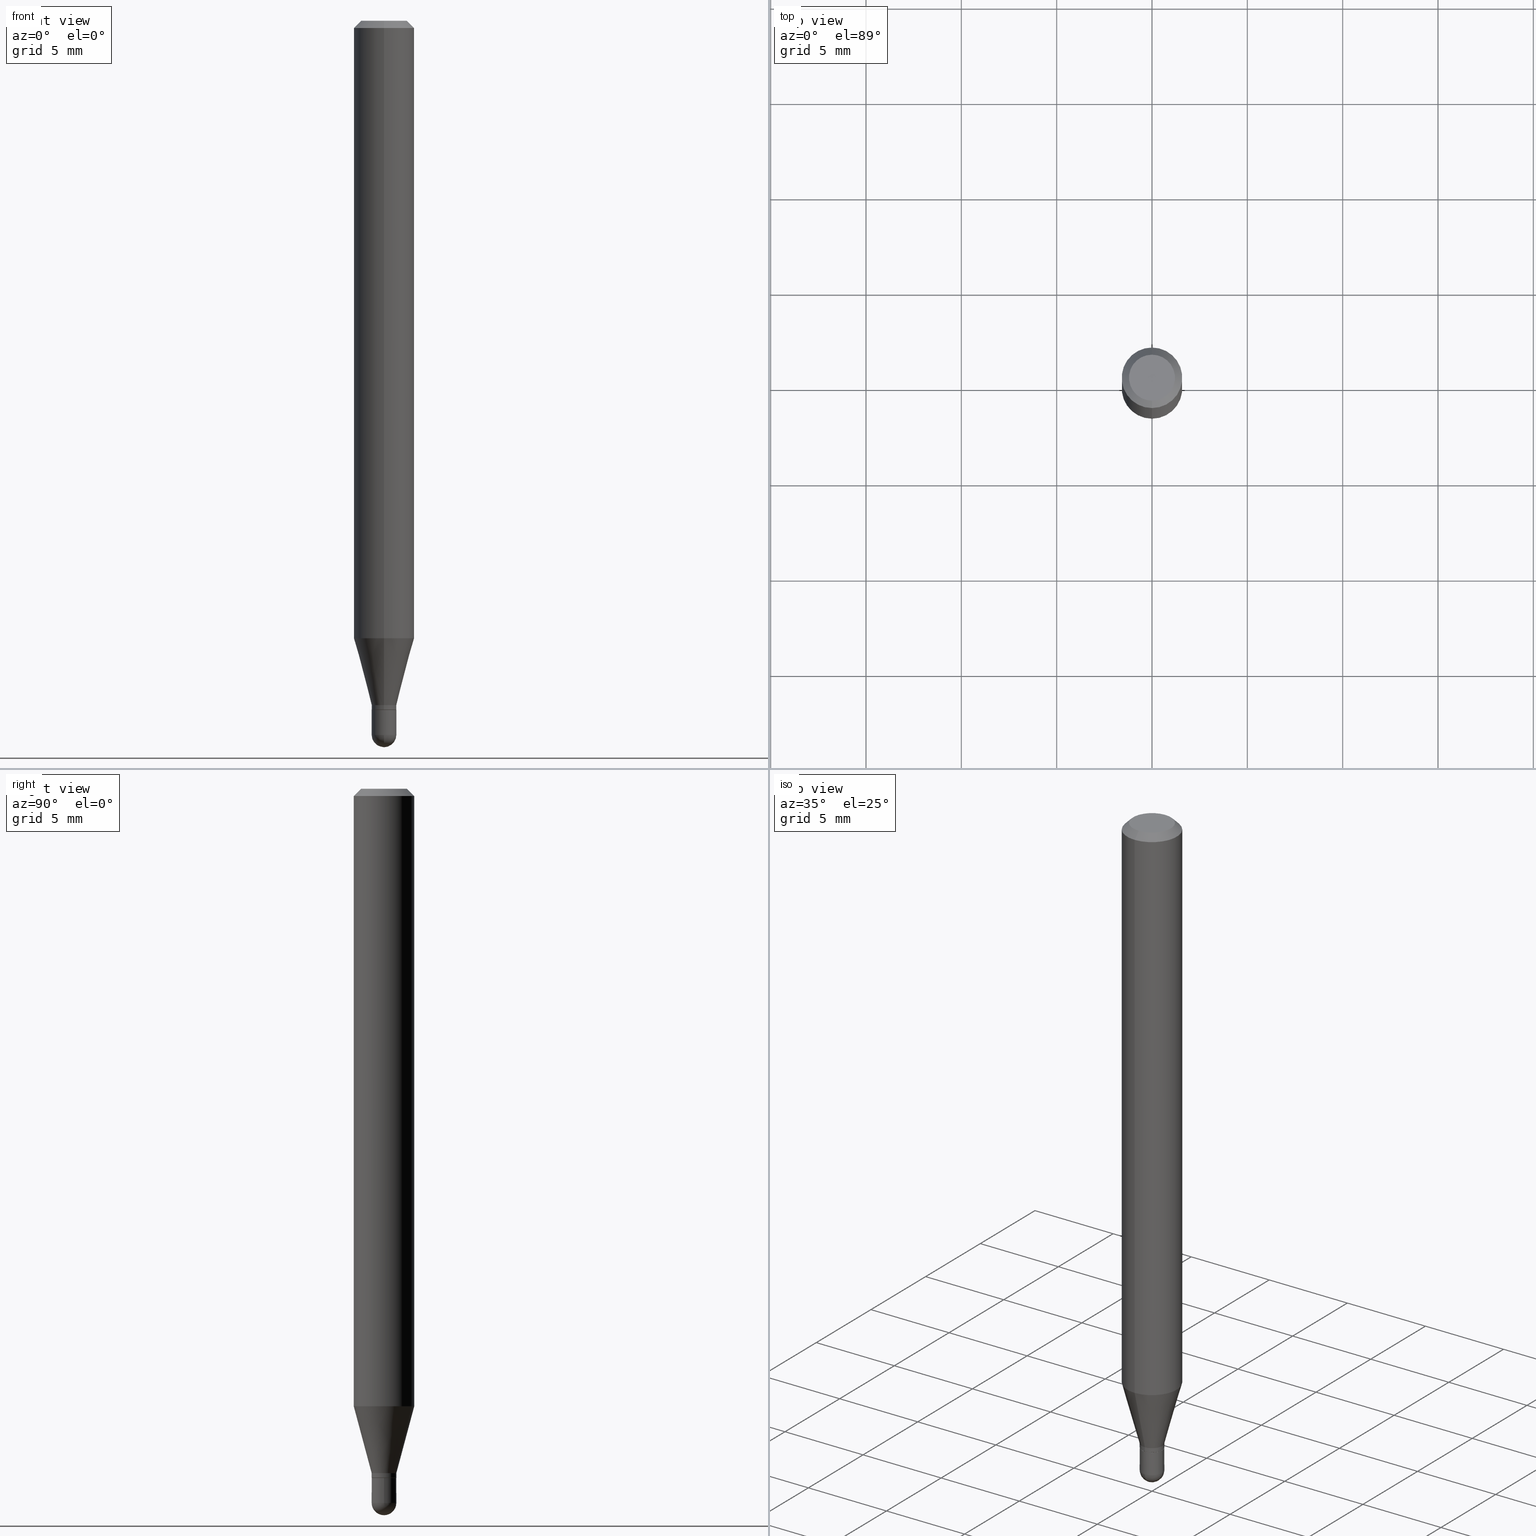
[diagram: canonical four-view strip — front | top / right | iso, engineering-drawing reading convention]
A machine part, canonical four-view strip (front | top / right | iso — engineering-drawing reading convention). The complete STEP part file that produces these views, byte-faithful:
ISO-10303-21;
HEADER;
FILE_DESCRIPTION (( 'STEP AP203' ),
    '1' );
FILE_NAME ('02548.STEP',
    '2024-03-07T20:22:07',
    ( '' ),
    ( '' ),
    'SwSTEP 2.0',
    'SolidWorks 2023',
    '' );
FILE_SCHEMA (( 'CONFIG_CONTROL_DESIGN' ));
ENDSEC;

DATA;
#1 = EDGE_CURVE ( 'NONE', #334, #324, #52, .T. ) ;
#2 = EDGE_LOOP ( 'NONE', ( #335, #466, #153, #234 ) ) ;
#3 = DIRECTION ( 'NONE',  ( -2.445468806185136597E-29, 3.491481338843145583E-15, 1.000000000000000000 ) ) ;
#4 = CARTESIAN_POINT ( 'NONE',  ( 3.478670432157215102E-29, -4.966645013739586903E-15, -1.422500000000000098 ) ) ;
#5 = EDGE_CURVE ( 'NONE', #316, #221, #206, .T. ) ;
#6 = FACE_OUTER_BOUND ( 'NONE', #74, .T. ) ;
#7 = CARTESIAN_POINT ( 'NONE',  ( 1.794120407794597717E-16, 0.02499999999999502967, -1.423000000000000043 ) ) ;
#8 = AXIS2_PLACEMENT_3D ( 'NONE', #410, #229, #253 ) ;
#9 = DIRECTION ( 'NONE',  ( 1.839019923739603865E-15, 0.2588190451025254579, 0.9659258262890669799 ) ) ;
#10 = SECURITY_CLASSIFICATION ( '', '', #257 ) ;
#11 = PRODUCT ( '02548', '02548', '', ( #139 ) ) ;
#12 = DIRECTION ( 'NONE',  ( -2.445468806185136877E-29, 3.491481338843145188E-15, 1.000000000000000000 ) ) ;
#13 = DIRECTION ( 'NONE',  ( -2.445462518212453604E-29, 3.491490343577917092E-15, 1.000000000000000000 ) ) ;
#14 = PLANE ( 'NONE',  #109 ) ;
#15 = ORIENTED_EDGE ( 'NONE', *, *, #50, .F. ) ;
#16 = DIRECTION ( 'NONE',  ( -6.982962677686266711E-15, -1.000000000000000000, 3.491490343577917487E-15 ) ) ;
#17 = DIRECTION ( 'NONE',  ( -2.445468806185136597E-29, 3.491481338843145583E-15, 1.000000000000000000 ) ) ;
#18 = AXIS2_PLACEMENT_3D ( 'NONE', #468, #458, #301 ) ;
#19 = CC_DESIGN_DATE_AND_TIME_ASSIGNMENT ( #230, #73, ( #37 ) ) ;
#20 = APPLICATION_PROTOCOL_DEFINITION ( 'international standard', 'config_control_design', 1994, #392 ) ;
#21 = CARTESIAN_POINT ( 'NONE',  ( 3.479893163416321038E-29, -4.968390758911376014E-15, -1.423000000000000043 ) ) ;
#22 = ORIENTED_EDGE ( 'NONE', *, *, #478, .F. ) ;
#23 = DIRECTION ( 'NONE',  ( 0.000000000000000000, 0.000000000000000000, 1.000000000000000000 ) ) ;
#24 = EDGE_CURVE ( 'NONE', #495, #344, #295, .T. ) ;
#25 = CARTESIAN_POINT ( 'NONE',  ( 1.811883976188591117E-16, 0.02549999999999486705, -1.422500000000000098 ) ) ;
#26 = EDGE_CURVE ( 'NONE', #248, #350, #213, .T. ) ;
#27 = ORIENTED_EDGE ( 'NONE', *, *, #5, .F. ) ;
#28 = AXIS2_PLACEMENT_3D ( 'NONE', #385, #319, #425 ) ;
#29 = VECTOR ( 'NONE', #56, 39.37007874015748143 ) ;
#30 = APPROVAL_ROLE ( '' ) ;
#31 = CARTESIAN_POINT ( 'NONE',  ( 1.811883976188621192E-16, 0.02549999999999492950, -1.474500000000000144 ) ) ;
#32 = COORDINATED_UNIVERSAL_TIME_OFFSET ( 5, 0, .BEHIND. ) ;
#33 = ORIENTED_EDGE ( 'NONE', *, *, #323, .T. ) ;
#34 = VERTEX_POINT ( 'NONE', #7 ) ;
#35 = DATE_AND_TIME ( #375, #228 ) ;
#36 = ORIENTED_EDGE ( 'NONE', *, *, #114, .F. ) ;
#37 = PRODUCT_DEFINITION ( 'UNKNOWN', '', #200, #278 ) ;
#38 = CARTESIAN_POINT ( 'NONE',  ( 3.479902111201449341E-29, -4.968377945173796372E-15, -1.423000000000000043 ) ) ;
#39 = DIRECTION ( 'NONE',  ( -2.445468806185136597E-29, 3.491481338843145583E-15, 1.000000000000000000 ) ) ;
#40 = VERTEX_POINT ( 'NONE', #435 ) ;
#41 = CARTESIAN_POINT ( 'NONE',  ( 0.000000000000000000, 0.000000000000000000, 0.000000000000000000 ) ) ;
#42 = ORIENTED_EDGE ( 'NONE', *, *, #472, .F. ) ;
#43 = EDGE_CURVE ( 'NONE', #40, #470, #343, .T. ) ;
#44 = DIRECTION ( 'NONE',  ( -2.445468806185136877E-29, 3.491481338843145188E-15, 1.000000000000000000 ) ) ;
#45 = CYLINDRICAL_SURFACE ( 'NONE', #252, 0.02549999999999992203 ) ;
#46 = LINE ( 'NONE', #239, #439 ) ;
#47 = AXIS2_PLACEMENT_3D ( 'NONE', #21, #174, #486 ) ;
#48 = CIRCLE ( 'NONE', #497, 0.02549999999999999836 ) ;
#49 = PLANE ( 'NONE',  #394 ) ;
#50 = EDGE_CURVE ( 'NONE', #313, #498, #284, .T. ) ;
#51 = ADVANCED_FACE ( 'NONE', ( #349 ), #477, .T. ) ;
#52 = CIRCLE ( 'NONE', #430, 0.02549999999999999836 ) ;
#53 = AXIS2_PLACEMENT_3D ( 'NONE', #399, #404, #363 ) ;
#54 = CC_DESIGN_APPROVAL ( #169, ( #37 ) ) ;
#55 = EDGE_CURVE ( 'NONE', #248, #152, #46, .T. ) ;
#56 = DIRECTION ( 'NONE',  ( -2.445462518212453604E-29, 3.491490343577917092E-15, 1.000000000000000000 ) ) ;
#57 = EDGE_LOOP ( 'NONE', ( #148, #98, #186, #396 ) ) ;
#58 = CARTESIAN_POINT ( 'NONE',  ( -3.773273898774340269E-16, -0.04749999999999999362, -1.623007286673070260E-16 ) ) ;
#59 = EDGE_CURVE ( 'NONE', #462, #248, #503, .T. ) ;
#60 = CARTESIAN_POINT ( 'NONE',  ( -1.780655482809647185E-16, -0.02550000000000486253, -1.413000000000000256 ) ) ;
#61 = AXIS2_PLACEMENT_3D ( 'NONE', #87, #39, #437 ) ;
#62 = AXIS2_PLACEMENT_3D ( 'NONE', #100, #95, #249 ) ;
#63 = CC_DESIGN_SECURITY_CLASSIFICATION ( #10, ( #200 ) ) ;
#64 = CALENDAR_DATE ( 2024, 7, 3 ) ;
#65 = CARTESIAN_POINT ( 'NONE',  ( 8.024700151106933838E-45, -1.145720405814209478E-30, -3.281465199872580750E-16 ) ) ;
#66 = APPLICATION_PROTOCOL_DEFINITION ( 'international standard', 'config_control_design', 1994, #236 ) ;
#67 = ORIENTED_EDGE ( 'NONE', *, *, #469, .F. ) ;
#68 = ORIENTED_EDGE ( 'NONE', *, *, #219, .F. ) ;
#69 = APPROVAL_DATE_TIME ( #339, #446 ) ;
#70 = LINE ( 'NONE', #455, #401 ) ;
#71 = AXIS2_PLACEMENT_3D ( 'NONE', #205, #366, #218 ) ;
#72 = CIRCLE ( 'NONE', #268, 0.02549999999999999836 ) ;
#73 = DATE_TIME_ROLE ( 'creation_date' ) ;
#74 = EDGE_LOOP ( 'NONE', ( #303, #376, #442, #509 ) ) ;
#75 = DATE_AND_TIME ( #347, #395 ) ;
#76 = VECTOR ( 'NONE', #198, 39.37007874015748143 ) ;
#77 = CONICAL_SURFACE ( 'NONE', #53, 0.02549999999999992550, 0.2617993877991508511 ) ;
#78 = ORIENTED_EDGE ( 'NONE', *, *, #162, .T. ) ;
#79 = CC_DESIGN_PERSON_AND_ORGANIZATION_ASSIGNMENT ( #297, #448, ( #200 ) ) ;
#80 = EDGE_LOOP ( 'NONE', ( #188, #227, #189, #211 ) ) ;
#81 = CARTESIAN_POINT ( 'NONE',  ( -0.02549999999999999836, -4.877095192030181253E-15, -1.474500000000000144 ) ) ;
#82 = CARTESIAN_POINT ( 'NONE',  ( -1.745740669421218346E-16, -0.02500000000000496617, -1.423000000000000043 ) ) ;
#83 = ORIENTED_EDGE ( 'NONE', *, *, #207, .F. ) ;
#84 = LINE ( 'NONE', #314, #267 ) ;
#85 = DIRECTION ( 'NONE',  ( -2.445462518212453604E-29, 3.491490343577917092E-15, 1.000000000000000000 ) ) ;
#86 = VECTOR ( 'NONE', #259, 39.37007874015748143 ) ;
#87 = CARTESIAN_POINT ( 'NONE',  ( 0.000000000000000000, 0.000000000000000000, 0.000000000000000000 ) ) ;
#88 = DIRECTION ( 'NONE',  ( 2.438088387897960049E-29, -3.491481338843145188E-15, -1.000000000000000000 ) ) ;
#89 = ORIENTED_EDGE ( 'NONE', *, *, #420, .F. ) ;
#90 = CIRCLE ( 'NONE', #423, 0.06250000000000000000 ) ;
#91 = DIRECTION ( 'NONE',  ( -2.445462518212453604E-29, 3.491490343577917092E-15, 1.000000000000000000 ) ) ;
#92 = CARTESIAN_POINT ( 'NONE',  ( 4.440892098500939734E-16, 0.06249999999999995143, -0.01500000000000054588 ) ) ;
#93 = CC_DESIGN_DATE_AND_TIME_ASSIGNMENT ( #35, #371, ( #10 ) ) ;
#94 = CYLINDRICAL_SURFACE ( 'NONE', #378, 0.02549999999999999836 ) ;
#95 = DIRECTION ( 'NONE',  ( -1.000000000000000000, 6.982962677686265922E-15, -4.883557194083112340E-29 ) ) ;
#96 =( LENGTH_UNIT ( ) NAMED_UNIT ( * ) SI_UNIT ( $, .METRE. ) );
#97 = LINE ( 'NONE', #60, #142 ) ;
#98 = ORIENTED_EDGE ( 'NONE', *, *, #114, .T. ) ;
#99 = AXIS2_PLACEMENT_3D ( 'NONE', #176, #290, #212 ) ;
#100 = CARTESIAN_POINT ( 'NONE',  ( 3.603663080682576322E-29, -5.151312083462043978E-15, -1.474500000000000144 ) ) ;
#101 = CIRCLE ( 'NONE', #62, 0.02550000000000016143 ) ;
#102 = APPROVAL_STATUS ( 'not_yet_approved' ) ;
#103 = DIRECTION ( 'NONE',  ( -2.445462518212453604E-29, 3.491490343577917092E-15, 1.000000000000000000 ) ) ;
#104 = FACE_OUTER_BOUND ( 'NONE', #80, .T. ) ;
#105 = DIRECTION ( 'NONE',  ( -2.445468806185136597E-29, 3.491481338843145583E-15, 1.000000000000000000 ) ) ;
#106 = DIRECTION ( 'NONE',  ( 1.000000000000000000, -6.982962677686275388E-15, 0.000000000000000000 ) ) ;
#107 = LINE ( 'NONE', #441, #86 ) ;
#108 = DIRECTION ( 'NONE',  ( -2.445462518212453604E-29, 3.491490343577917092E-15, 1.000000000000000000 ) ) ;
#109 = AXIS2_PLACEMENT_3D ( 'NONE', #285, #171, #484 ) ;
#110 = PERSON_AND_ORGANIZATION_ROLE ( 'creator' ) ;
#111 = ADVANCED_FACE ( 'NONE', ( #353 ), #149, .T. ) ;
#112 = ORIENTED_EDGE ( 'NONE', *, *, #138, .T. ) ;
#113 = ORIENTED_EDGE ( 'NONE', *, *, #398, .F. ) ;
#114 = EDGE_CURVE ( 'NONE', #495, #313, #291, .T. ) ;
#115 = FACE_OUTER_BOUND ( 'NONE', #57, .T. ) ;
#116 = ORIENTED_EDGE ( 'NONE', *, *, #507, .T. ) ;
#117 = CARTESIAN_POINT ( 'NONE',  ( 0.02549999999999999836, -1.780655482809997982E-16, 1.243425077827963501E-30 ) ) ;
#118 = DIRECTION ( 'NONE',  ( 2.445462518212453604E-29, -3.491490343577917092E-15, -1.000000000000000000 ) ) ;
#119 = AXIS2_PLACEMENT_3D ( 'NONE', #243, #318, #165 ) ;
#120 = APPROVAL_PERSON_ORGANIZATION ( #187, #374, #30 ) ;
#121 = SPHERICAL_SURFACE ( 'NONE', #71, 0.02550000000000016143 ) ;
#122 = ORIENTED_EDGE ( 'NONE', *, *, #1, .T. ) ;
#123 = ORIENTED_EDGE ( 'NONE', *, *, #59, .T. ) ;
#124 = CARTESIAN_POINT ( 'NONE',  ( -1.780655482809650636E-16, -0.02550000000000497702, -1.422500000000000098 ) ) ;
#125 = DIRECTION ( 'NONE',  ( -2.445462518212453604E-29, 3.491490343577917092E-15, 1.000000000000000000 ) ) ;
#126 = VECTOR ( 'NONE', #447, 39.37007874015748143 ) ;
#127 = ADVANCED_FACE ( 'NONE', ( #104 ), #121, .T. ) ;
#128 = PLANE ( 'NONE',  #491 ) ;
#129 = CARTESIAN_POINT ( 'NONE',  ( 3.479893163416321038E-29, -4.968390758911376014E-15, -1.423000000000000043 ) ) ;
#130 = CARTESIAN_POINT ( 'NONE',  ( 3.664932198221593692E-29, -5.241906282271458607E-15, -1.500000000000000222 ) ) ;
#131 = ADVANCED_FACE ( 'NONE', ( #195 ), #411, .T. ) ;
#132 = CIRCLE ( 'NONE', #269, 0.02550000000000016143 ) ;
#133 = ORIENTED_EDGE ( 'NONE', *, *, #365, .T. ) ;
#134 = DIRECTION ( 'NONE',  ( -2.445462518212453604E-29, 3.491490343577917092E-15, 1.000000000000000000 ) ) ;
#135 = EDGE_CURVE ( 'NONE', #344, #495, #479, .T. ) ;
#136 = FACE_OUTER_BOUND ( 'NONE', #329, .T. ) ;
#137 =( CONVERSION_BASED_UNIT ( 'INCH', #405 ) LENGTH_UNIT ( ) NAMED_UNIT ( #292 ) );
#138 = EDGE_CURVE ( 'NONE', #462, #34, #322, .T. ) ;
#139 = MECHANICAL_CONTEXT ( 'NONE', #392, 'mechanical' ) ;
#140 = MANIFOLD_SOLID_BREP ( 'Body-Move/Copy2[2]', #464 ) ;
#141 = DIRECTION ( 'NONE',  ( -6.982962677686265133E-15, -1.000000000000000000, 0.000000000000000000 ) ) ;
#142 = VECTOR ( 'NONE', #250, 39.37007874015748854 ) ;
#143 = CONICAL_SURFACE ( 'NONE', #181, 0.02499999999999999792, 0.7853981633974739252 ) ;
#144 = LOCAL_TIME ( 15, 22, 7.000000000000000000, #32 ) ;
#145 = APPROVAL_DATE_TIME ( #261, #169 ) ;
#146 = ORIENTED_EDGE ( 'NONE', *, *, #55, .F. ) ;
#147 = ORIENTED_EDGE ( 'NONE', *, *, #156, .F. ) ;
#148 = ORIENTED_EDGE ( 'NONE', *, *, #24, .F. ) ;
#149 = SPHERICAL_SURFACE ( 'NONE', #308, 0.02550000000000016143 ) ;
#150 = CARTESIAN_POINT ( 'NONE',  ( 3.840629472727447874E-16, 0.04749999999999999362, -4.939923113072091241E-16 ) ) ;
#151 = APPROVAL_ROLE ( '' ) ;
#152 = VERTEX_POINT ( 'NONE', #443 ) ;
#153 = ORIENTED_EDGE ( 'NONE', *, *, #413, .T. ) ;
#154 = AXIS2_PLACEMENT_3D ( 'NONE', #434, #85, #242 ) ;
#155 = EDGE_LOOP ( 'NONE', ( #274, #272, #15, #428 ) ) ;
#156 = EDGE_CURVE ( 'NONE', #152, #470, #97, .T. ) ;
#157 = EDGE_LOOP ( 'NONE', ( #492, #340, #122, #511, #89 ) ) ;
#158 = ORIENTED_EDGE ( 'NONE', *, *, #323, .F. ) ;
#159 = CIRCLE ( 'NONE', #119, 0.02549999999999992203 ) ;
#160 = FACE_OUTER_BOUND ( 'NONE', #300, .T. ) ;
#161 = EDGE_LOOP ( 'NONE', ( #383, #270 ) ) ;
#162 = EDGE_CURVE ( 'NONE', #34, #462, #422, .T. ) ;
#163 = DIRECTION ( 'NONE',  ( -2.445462518212453604E-29, 3.491490343577917092E-15, 1.000000000000000000 ) ) ;
#164 = DIRECTION ( 'NONE',  ( -6.982962677686266711E-15, -1.000000000000000000, 0.000000000000000000 ) ) ;
#165 = DIRECTION ( 'NONE',  ( -6.982962677686265922E-15, -1.000000000000000000, 0.000000000000000000 ) ) ;
#166 = VECTOR ( 'NONE', #445, 39.37007874015748143 ) ;
#167 = CARTESIAN_POINT ( 'NONE',  ( 3.455438538234196718E-29, -4.933475855475596949E-15, -1.413000000000000256 ) ) ;
#168 = VERTEX_POINT ( 'NONE', #294 ) ;
#169 = APPROVAL ( #400, 'UNSPECIFIED' ) ;
#170 = CARTESIAN_POINT ( 'NONE',  ( 0.000000000000000000, 0.000000000000000000, 0.000000000000000000 ) ) ;
#171 = DIRECTION ( 'NONE',  ( 2.445462518212453043E-29, -3.491490343577917092E-15, -1.000000000000000000 ) ) ;
#172 = ORIENTED_EDGE ( 'NONE', *, *, #55, .T. ) ;
#173 = AXIS2_PLACEMENT_3D ( 'NONE', #167, #482, #282 ) ;
#174 = DIRECTION ( 'NONE',  ( -2.445462518212453604E-29, 3.491490343577917092E-15, 1.000000000000000000 ) ) ;
#175 = CARTESIAN_POINT ( 'NONE',  ( 3.455438538234196718E-29, -4.933475855475596949E-15, -1.413000000000000256 ) ) ;
#176 = CARTESIAN_POINT ( 'NONE',  ( 3.479893163416321038E-29, -4.968390758911376014E-15, -1.423000000000000043 ) ) ;
#177 = FACE_OUTER_BOUND ( 'NONE', #157, .T. ) ;
#178 = CARTESIAN_POINT ( 'NONE',  ( 3.605843754719984351E-29, -5.148189234124218339E-15, -1.474500000000000144 ) ) ;
#179 = CARTESIAN_POINT ( 'NONE',  ( 0.000000000000000000, 0.000000000000000000, 0.000000000000000000 ) ) ;
#180 = CARTESIAN_POINT ( 'NONE',  ( 3.605843754719984351E-29, -5.148189234124218339E-15, -1.474500000000000144 ) ) ;
#181 = AXIS2_PLACEMENT_3D ( 'NONE', #129, #125, #275 ) ;
#182 = DIRECTION ( 'NONE',  ( 6.982962677686265922E-15, 1.000000000000000000, -3.483106191921935554E-15 ) ) ;
#183 = COORDINATED_UNIVERSAL_TIME_OFFSET ( 5, 0, .BEHIND. ) ;
#184 = CC_DESIGN_PERSON_AND_ORGANIZATION_ASSIGNMENT ( #233, #494, ( #10 ) ) ;
#185 = COORDINATED_UNIVERSAL_TIME_OFFSET ( 5, 0, .BEHIND. ) ;
#186 = ORIENTED_EDGE ( 'NONE', *, *, #50, .T. ) ;
#187 = PERSON_AND_ORGANIZATION ( #224, #279 ) ;
#188 = ORIENTED_EDGE ( 'NONE', *, *, #409, .F. ) ;
#189 = ORIENTED_EDGE ( 'NONE', *, *, #357, .F. ) ;
#190 = LINE ( 'NONE', #471, #483 ) ;
#191 = AXIS2_PLACEMENT_3D ( 'NONE', #456, #108, #475 ) ;
#192 = DIRECTION ( 'NONE',  ( -2.445462518212453604E-29, 3.491490343577917092E-15, 1.000000000000000000 ) ) ;
#193 = LINE ( 'NONE', #501, #29 ) ;
#194 = DIRECTION ( 'NONE',  ( 1.000000000000000000, -6.982962677686275388E-15, 0.000000000000000000 ) ) ;
#195 = FACE_OUTER_BOUND ( 'NONE', #210, .T. ) ;
#196 = VERTEX_POINT ( 'NONE', #130 ) ;
#197 = CARTESIAN_POINT ( 'NONE',  ( 0.000000000000000000, 0.000000000000000000, 0.000000000000000000 ) ) ;
#198 = DIRECTION ( 'NONE',  ( -4.937700262164674260E-15, -0.7071067811865632269, 0.7071067811865319186 ) ) ;
#199 = CIRCLE ( 'NONE', #209, 0.02549999999999999836 ) ;
#200 = PRODUCT_DEFINITION_FORMATION_WITH_SPECIFIED_SOURCE ( 'ANY', '', #11, .NOT_KNOWN. ) ;
#201 = CARTESIAN_POINT ( 'NONE',  ( 1.780655482810345820E-16, 0.02549999999999503011, -1.423000000000000043 ) ) ;
#202 = CARTESIAN_POINT ( 'NONE',  ( 3.479893163416321038E-29, -4.968390758911376014E-15, -1.423000000000000043 ) ) ;
#203 = ADVANCED_FACE ( 'NONE', ( #160 ), #128, .F. ) ;
#204 = EDGE_CURVE ( 'NONE', #419, #40, #84, .T. ) ;
#205 = CARTESIAN_POINT ( 'NONE',  ( 3.603663080682576322E-29, -5.151312083462043978E-15, -1.474500000000000144 ) ) ;
#206 = CIRCLE ( 'NONE', #473, 0.02549999999999999836 ) ;
#207 = EDGE_CURVE ( 'NONE', #419, #152, #331, .T. ) ;
#208 = AXIS2_PLACEMENT_3D ( 'NONE', #328, #488, #141 ) ;
#209 = AXIS2_PLACEMENT_3D ( 'NONE', #355, #3, #276 ) ;
#210 = EDGE_LOOP ( 'NONE', ( #42, #78, #123, #465 ) ) ;
#211 = ORIENTED_EDGE ( 'NONE', *, *, #1, .F. ) ;
#212 = DIRECTION ( 'NONE',  ( -6.982962677686265133E-15, -1.000000000000000000, 0.000000000000000000 ) ) ;
#213 = CIRCLE ( 'NONE', #245, 0.02549999999999992203 ) ;
#214 = CARTESIAN_POINT ( 'NONE',  ( -4.287811248607203282E-16, -0.06250000000000005551, -0.01500000000000011047 ) ) ;
#215 = CIRCLE ( 'NONE', #440, 0.02549999999999992550 ) ;
#216 = CC_DESIGN_PERSON_AND_ORGANIZATION_ASSIGNMENT ( #463, #289, ( #11 ) ) ;
#217 = CALENDAR_DATE ( 2024, 7, 3 ) ;
#218 = DIRECTION ( 'NONE',  ( -6.982962677686265922E-15, -1.000000000000000000, 0.000000000000000000 ) ) ;
#219 = EDGE_CURVE ( 'NONE', #196, #316, #132, .T. ) ;
#220 = FACE_OUTER_BOUND ( 'NONE', #155, .T. ) ;
#221 = VERTEX_POINT ( 'NONE', #81 ) ;
#222 = DIRECTION ( 'NONE',  ( -2.445462518212453604E-29, 3.491490343577917092E-15, 1.000000000000000000 ) ) ;
#223 = PERSON_AND_ORGANIZATION_ROLE ( 'creator' ) ;
#224 = PERSON ( 'UNSPECIFIED', 'UNSPECIFIED', 'UNSPECIFIED', ('UNSPECIFIED'), ('UNSPECIFIED'), ('UNSPECIFIED') ) ;
#225 = PERSON_AND_ORGANIZATION ( #224, #279 ) ;
#226 = ADVANCED_FACE ( 'NONE', ( #387 ), #45, .T. ) ;
#227 = ORIENTED_EDGE ( 'NONE', *, *, #219, .T. ) ;
#228 = LOCAL_TIME ( 15, 22, 7.000000000000000000, #407 ) ;
#229 = DIRECTION ( 'NONE',  ( 2.445462518212453604E-29, -3.491490343577917092E-15, -1.000000000000000000 ) ) ;
#230 = DATE_AND_TIME ( #64, #333 ) ;
#231 = EDGE_LOOP ( 'NONE', ( #22, #406, #172, #83 ) ) ;
#232 = VERTEX_POINT ( 'NONE', #476 ) ;
#233 = PERSON_AND_ORGANIZATION ( #224, #279 ) ;
#234 = ORIENTED_EDGE ( 'NONE', *, *, #311, .F. ) ;
#235 = LINE ( 'NONE', #117, #432 ) ;
#236 = APPLICATION_CONTEXT ( 'configuration controlled 3d designs of mechanical parts and assemblies' ) ;
#237 = ORIENTED_EDGE ( 'NONE', *, *, #493, .F. ) ;
#238 = CIRCLE ( 'NONE', #18, 0.06250000000000000000 ) ;
#239 = CARTESIAN_POINT ( 'NONE',  ( -1.780655482809992312E-16, -0.02549999999999992203, 8.903300376123661182E-17 ) ) ;
#240 = CARTESIAN_POINT ( 'NONE',  ( 3.668193777318761015E-31, -5.237235515366990319E-17, -0.01500000000000032904 ) ) ;
#241 = DIRECTION ( 'NONE',  ( -2.445462518212453604E-29, 3.491490343577917092E-15, 1.000000000000000000 ) ) ;
#242 = DIRECTION ( 'NONE',  ( -6.982962677686266711E-15, -1.000000000000000000, 0.000000000000000000 ) ) ;
#243 = CARTESIAN_POINT ( 'NONE',  ( 3.478670432157215102E-29, -4.966645013739586903E-15, -1.422500000000000098 ) ) ;
#244 = CARTESIAN_POINT ( 'NONE',  ( 3.603663080682576322E-29, -5.151312083462043978E-15, -1.474500000000000144 ) ) ;
#245 = AXIS2_PLACEMENT_3D ( 'NONE', #4, #241, #281 ) ;
#246 = AXIS2_PLACEMENT_3D ( 'NONE', #373, #467, #474 ) ;
#247 = CARTESIAN_POINT ( 'NONE',  ( 3.126388037344767028E-16, 0.02549999999999499195, -1.413000000000000256 ) ) ;
#248 = VERTEX_POINT ( 'NONE', #124 ) ;
#249 = DIRECTION ( 'NONE',  ( -6.982962677686265922E-15, -1.000000000000000000, 0.000000000000000000 ) ) ;
#250 = DIRECTION ( 'NONE',  ( -1.807323732225333689E-15, -0.2588190451025186856, 0.9659258262890687563 ) ) ;
#251 = AXIS2_PLACEMENT_3D ( 'NONE', #65, #103, #16 ) ;
#252 = AXIS2_PLACEMENT_3D ( 'NONE', #197, #352, #512 ) ;
#253 = DIRECTION ( 'NONE',  ( 6.982962677686265922E-15, 1.000000000000000000, -3.483106191921935554E-15 ) ) ;
#254 = ORIENTED_EDGE ( 'NONE', *, *, #420, .T. ) ;
#255 =( NAMED_UNIT ( * ) PLANE_ANGLE_UNIT ( ) SI_UNIT ( $, .RADIAN. ) );
#256 = DIRECTION ( 'NONE',  ( 1.000000000000000000, -6.982962677686275388E-15, 0.000000000000000000 ) ) ;
#257 = SECURITY_CLASSIFICATION_LEVEL ( 'unclassified' ) ;
#258 = ADVANCED_FACE ( 'NONE', ( #384 ), #505, .T. ) ;
#259 = DIRECTION ( 'NONE',  ( 4.937700262164548042E-15, 0.7071067811865451302, -0.7071067811865499042 ) ) ;
#260 = FACE_OUTER_BOUND ( 'NONE', #429, .T. ) ;
#261 = DATE_AND_TIME ( #330, #280 ) ;
#262 = CONICAL_SURFACE ( 'NONE', #154, 0.02549999999999992550, 0.2617993877991508511 ) ;
#263 = CYLINDRICAL_SURFACE ( 'NONE', #246, 0.06250000000000000000 ) ;
#264 = DIRECTION ( 'NONE',  ( 1.000000000000000000, 0.000000000000000000, 0.000000000000000000 ) ) ;
#265 = CARTESIAN_POINT ( 'NONE',  ( -1.745740669421218346E-16, -0.02500000000000496617, -1.423000000000000043 ) ) ;
#266 = DIRECTION ( 'NONE',  ( 1.000000000000000000, -6.982962677686265922E-15, 4.883557194083112901E-29 ) ) ;
#267 = VECTOR ( 'NONE', #9, 39.37007874015748854 ) ;
#268 = AXIS2_PLACEMENT_3D ( 'NONE', #38, #337, #194 ) ;
#269 = AXIS2_PLACEMENT_3D ( 'NONE', #244, #271, #426 ) ;
#270 = ORIENTED_EDGE ( 'NONE', *, *, #24, .T. ) ;
#271 = DIRECTION ( 'NONE',  ( 1.000000000000000000, -7.105427357601001070E-15, 4.926315508542082329E-29 ) ) ;
#272 = ORIENTED_EDGE ( 'NONE', *, *, #391, .T. ) ;
#273 = CC_DESIGN_PERSON_AND_ORGANIZATION_ASSIGNMENT ( #225, #223, ( #37 ) ) ;
#274 = ORIENTED_EDGE ( 'NONE', *, *, #398, .T. ) ;
#275 = DIRECTION ( 'NONE',  ( -6.982962677686265133E-15, -1.000000000000000000, 0.000000000000000000 ) ) ;
#276 = DIRECTION ( 'NONE',  ( 1.000000000000000000, -6.982962677686275388E-15, 0.000000000000000000 ) ) ;
#277 = AXIS2_PLACEMENT_3D ( 'NONE', #427, #163, #317 ) ;
#278 = DESIGN_CONTEXT ( 'detailed design', #236, 'design' ) ;
#279 = ORGANIZATION ( 'UNSPECIFIED', 'UNSPECIFIED', '' ) ;
#280 = LOCAL_TIME ( 15, 22, 7.000000000000000000, #185 ) ;
#281 = DIRECTION ( 'NONE',  ( -6.982962677686265922E-15, -1.000000000000000000, 0.000000000000000000 ) ) ;
#282 = DIRECTION ( 'NONE',  ( -6.982962677686266711E-15, -1.000000000000000000, 0.000000000000000000 ) ) ;
#283 = ORIENTED_EDGE ( 'NONE', *, *, #5, .T. ) ;
#284 = CIRCLE ( 'NONE', #277, 0.06250000000000000000 ) ;
#285 = CARTESIAN_POINT ( 'NONE',  ( 3.316907271900976096E-16, 0.04749999999999999362, -3.299190513135800373E-16 ) ) ;
#286 = ORIENTED_EDGE ( 'NONE', *, *, #26, .T. ) ;
#287 = PRODUCT_RELATED_PRODUCT_CATEGORY ( 'detail', '', ( #11 ) ) ;
#288 = LINE ( 'NONE', #397, #126 ) ;
#289 = PERSON_AND_ORGANIZATION_ROLE ( 'design_owner' ) ;
#290 = DIRECTION ( 'NONE',  ( -2.445462518212453604E-29, 3.491490343577917092E-15, 1.000000000000000000 ) ) ;
#291 = LINE ( 'NONE', #214, #166 ) ;
#292 = DIMENSIONAL_EXPONENTS ( 1.000000000000000000, 0.000000000000000000, 0.000000000000000000, 0.000000000000000000, 0.000000000000000000, 0.000000000000000000, 0.000000000000000000 ) ;
#293 = PERSON_AND_ORGANIZATION ( #224, #279 ) ;
#294 = CARTESIAN_POINT ( 'NONE',  ( 0.02549999999999999836, -5.146443493454796047E-15, -1.423000000000000043 ) ) ;
#295 = CIRCLE ( 'NONE', #191, 0.04749999999999999362 ) ;
#296 = DIRECTION ( 'NONE',  ( -2.445468806185136597E-29, 3.491481338843145583E-15, 1.000000000000000000 ) ) ;
#297 = PERSON_AND_ORGANIZATION ( #224, #279 ) ;
#298 = CARTESIAN_POINT ( 'NONE',  ( 3.605843754719984351E-29, -5.148189234124218339E-15, -1.474500000000000144 ) ) ;
#299 = DIRECTION ( 'NONE',  ( -2.445468806185136597E-29, 3.491481338843145583E-15, 1.000000000000000000 ) ) ;
#300 = EDGE_LOOP ( 'NONE', ( #33, #254 ) ) ;
#301 = DIRECTION ( 'NONE',  ( -6.982962677686265922E-15, -1.000000000000000000, 3.483106191921935554E-15 ) ) ;
#302 = ORIENTED_EDGE ( 'NONE', *, *, #162, .F. ) ;
#303 = ORIENTED_EDGE ( 'NONE', *, *, #204, .F. ) ;
#304 = CIRCLE ( 'NONE', #351, 0.02549999999999999836 ) ;
#305 = ORIENTED_EDGE ( 'NONE', *, *, #507, .F. ) ;
#306 = EDGE_LOOP ( 'NONE', ( #68, #485, #237, #27 ) ) ;
#307 = ADVANCED_BREP_SHAPE_REPRESENTATION ( '02548', ( #449, #140, #510 ), #372 ) ;
#308 = AXIS2_PLACEMENT_3D ( 'NONE', #342, #266, #496 ) ;
#309 = FACE_OUTER_BOUND ( 'NONE', #2, .T. ) ;
#310 = AXIS2_PLACEMENT_3D ( 'NONE', #41, #192, #499 ) ;
#311 = EDGE_CURVE ( 'NONE', #498, #313, #238, .T. ) ;
#312 = ORIENTED_EDGE ( 'NONE', *, *, #311, .T. ) ;
#313 = VERTEX_POINT ( 'NONE', #381 ) ;
#314 = CARTESIAN_POINT ( 'NONE',  ( 1.811883976188595554E-16, 0.02549999999999499195, -1.413000000000000256 ) ) ;
#315 = UNCERTAINTY_MEASURE_WITH_UNIT (LENGTH_MEASURE( 1.000000000000000082E-05 ), #137, 'distance_accuracy_value', 'NONE');
#316 = VERTEX_POINT ( 'NONE', #31 ) ;
#317 = DIRECTION ( 'NONE',  ( -6.982962677686265922E-15, -1.000000000000000000, 3.483106191921935554E-15 ) ) ;
#318 = DIRECTION ( 'NONE',  ( -2.445462518212453604E-29, 3.491490343577917092E-15, 1.000000000000000000 ) ) ;
#319 = DIRECTION ( 'NONE',  ( -2.445462518212453604E-29, 3.491490343577917092E-15, 1.000000000000000000 ) ) ;
#320 = VECTOR ( 'NONE', #91, 39.37007874015748143 ) ;
#321 = ADVANCED_FACE ( 'NONE', ( #115 ), #480, .T. ) ;
#322 = CIRCLE ( 'NONE', #99, 0.02499999999999999792 ) ;
#323 = EDGE_CURVE ( 'NONE', #168, #232, #72, .T. ) ;
#324 = VERTEX_POINT ( 'NONE', #346 ) ;
#325 = DIRECTION ( 'NONE',  ( 1.000000000000000000, -6.982962677686266711E-15, 4.876176775795935793E-29 ) ) ;
#326 = CARTESIAN_POINT ( 'NONE',  ( 3.117754694693152859E-29, -4.451350339289950225E-15, -1.274914120119952310 ) ) ;
#327 = PERSON_AND_ORGANIZATION ( #224, #279 ) ;
#328 = CARTESIAN_POINT ( 'NONE',  ( 3.479893163416321038E-29, -4.968390758911376014E-15, -1.423000000000000043 ) ) ;
#329 = EDGE_LOOP ( 'NONE', ( #116, #341, #113, #147 ) ) ;
#330 = CALENDAR_DATE ( 2024, 7, 3 ) ;
#331 = CIRCLE ( 'NONE', #173, 0.02549999999999992550 ) ;
#332 = CONICAL_SURFACE ( 'NONE', #8, 0.06250000000000000000, 0.7853981633974483900 ) ;
#333 = LOCAL_TIME ( 15, 22, 7.000000000000000000, #364 ) ;
#334 = VERTEX_POINT ( 'NONE', #502 ) ;
#335 = ORIENTED_EDGE ( 'NONE', *, *, #391, .F. ) ;
#336 = ORIENTED_EDGE ( 'NONE', *, *, #26, .F. ) ;
#337 = DIRECTION ( 'NONE',  ( -2.445468806185136597E-29, 3.491481338843145583E-15, 1.000000000000000000 ) ) ;
#338 = ORIENTED_EDGE ( 'NONE', *, *, #478, .T. ) ;
#339 = DATE_AND_TIME ( #217, #144 ) ;
#340 = ORIENTED_EDGE ( 'NONE', *, *, #493, .T. ) ;
#341 = ORIENTED_EDGE ( 'NONE', *, *, #204, .T. ) ;
#342 = CARTESIAN_POINT ( 'NONE',  ( 3.603663080682576322E-29, -5.151312083462043978E-15, -1.474500000000000144 ) ) ;
#343 = CIRCLE ( 'NONE', #28, 0.06250000000000000000 ) ;
#344 = VERTEX_POINT ( 'NONE', #150 ) ;
#345 = APPROVAL_PERSON_ORGANIZATION ( #327, #169, #444 ) ;
#346 = CARTESIAN_POINT ( 'NONE',  ( 0.02549999999999999836, -5.236349137930007031E-15, -1.474500000000000144 ) ) ;
#347 = CALENDAR_DATE ( 2024, 7, 3 ) ;
#348 = ADVANCED_FACE ( 'NONE', ( #260 ), #332, .T. ) ;
#349 = FACE_OUTER_BOUND ( 'NONE', #368, .T. ) ;
#350 = VERTEX_POINT ( 'NONE', #25 ) ;
#351 = AXIS2_PLACEMENT_3D ( 'NONE', #451, #299, #402 ) ;
#352 = DIRECTION ( 'NONE',  ( -2.445462518212453604E-29, 3.491490343577917092E-15, 1.000000000000000000 ) ) ;
#353 = FACE_OUTER_BOUND ( 'NONE', #306, .T. ) ;
#354 = DIRECTION ( 'NONE',  ( -2.445462518212453043E-29, 3.491490343577917092E-15, 1.000000000000000000 ) ) ;
#355 = CARTESIAN_POINT ( 'NONE',  ( 3.479902111201449341E-29, -4.968377945173796372E-15, -1.423000000000000043 ) ) ;
#356 = DIRECTION ( 'NONE',  ( -1.000000000000000000, 6.982962677686265922E-15, -4.876176775795935793E-29 ) ) ;
#357 = EDGE_CURVE ( 'NONE', #324, #316, #304, .T. ) ;
#358 = EDGE_CURVE ( 'NONE', #221, #232, #70, .T. ) ;
#359 = LINE ( 'NONE', #393, #320 ) ;
#360 = FACE_OUTER_BOUND ( 'NONE', #161, .T. ) ;
#361 = ORIENTED_EDGE ( 'NONE', *, *, #357, .T. ) ;
#362 = CARTESIAN_POINT ( 'NONE',  ( 0.000000000000000000, 0.000000000000000000, 0.000000000000000000 ) ) ;
#363 = DIRECTION ( 'NONE',  ( -6.982962677686266711E-15, -1.000000000000000000, 0.000000000000000000 ) ) ;
#364 = COORDINATED_UNIVERSAL_TIME_OFFSET ( 5, 0, .BEHIND. ) ;
#365 = EDGE_CURVE ( 'NONE', #344, #498, #107, .T. ) ;
#366 = DIRECTION ( 'NONE',  ( 1.000000000000000000, -6.982962677686265922E-15, 4.883557194083112901E-29 ) ) ;
#367 = DIRECTION ( 'NONE',  ( -6.982962677686265922E-15, -1.000000000000000000, 3.491490343577917092E-15 ) ) ;
#368 = EDGE_LOOP ( 'NONE', ( #283, #414, #158, #67, #361 ) ) ;
#369 = ADVANCED_FACE ( 'NONE', ( #220 ), #408, .T. ) ;
#370 = ORIENTED_EDGE ( 'NONE', *, *, #135, .F. ) ;
#371 = DATE_TIME_ROLE ( 'classification_date' ) ;
#372 =( GEOMETRIC_REPRESENTATION_CONTEXT ( 3 ) GLOBAL_UNCERTAINTY_ASSIGNED_CONTEXT ( ( #315 ) ) GLOBAL_UNIT_ASSIGNED_CONTEXT ( ( #137, #255, #459 ) ) REPRESENTATION_CONTEXT ( 'NONE', 'WORKASPACE' ) );
#373 = CARTESIAN_POINT ( 'NONE',  ( 0.000000000000000000, 0.000000000000000000, 0.000000000000000000 ) ) ;
#374 = APPROVAL ( #102, 'UNSPECIFIED' ) ;
#375 = CALENDAR_DATE ( 2024, 7, 3 ) ;
#376 = ORIENTED_EDGE ( 'NONE', *, *, #207, .T. ) ;
#377 = CARTESIAN_POINT ( 'NONE',  ( -4.364351673553606080E-16, -0.06250000000000446865, -1.274914120119952088 ) ) ;
#378 = AXIS2_PLACEMENT_3D ( 'NONE', #362, #17, #325 ) ;
#379 = CC_DESIGN_APPROVAL ( #446, ( #200 ) ) ;
#380 = DIRECTION ( 'NONE',  ( 5.024295867788190974E-15, 0.7071067811865681119, 0.7071067811865270336 ) ) ;
#381 = CARTESIAN_POINT ( 'NONE',  ( -4.364351673553912750E-16, -0.06250000000000005551, -0.01500000000000011047 ) ) ;
#382 = ADVANCED_FACE ( 'NONE', ( #177 ), #94, .T. ) ;
#383 = ORIENTED_EDGE ( 'NONE', *, *, #135, .T. ) ;
#384 = FACE_OUTER_BOUND ( 'NONE', #231, .T. ) ;
#385 = CARTESIAN_POINT ( 'NONE',  ( 3.117754694693152859E-29, -4.451350339289950225E-15, -1.274914120119952310 ) ) ;
#386 = ORIENTED_EDGE ( 'NONE', *, *, #59, .F. ) ;
#387 = FACE_OUTER_BOUND ( 'NONE', #416, .T. ) ;
#388 = AXIS2_PLACEMENT_3D ( 'NONE', #170, #134, #367 ) ;
#389 = FACE_OUTER_BOUND ( 'NONE', #418, .T. ) ;
#390 = ADVANCED_FACE ( 'NONE', ( #136 ), #77, .T. ) ;
#391 = EDGE_CURVE ( 'NONE', #40, #498, #359, .T. ) ;
#392 = APPLICATION_CONTEXT ( 'configuration controlled 3d designs of mechanical parts and assemblies' ) ;
#393 = CARTESIAN_POINT ( 'NONE',  ( 4.440892098500625669E-16, 0.06250000000000000000, -2.182181464736198183E-16 ) ) ;
#394 = AXIS2_PLACEMENT_3D ( 'NONE', #202, #354, #417 ) ;
#395 = LOCAL_TIME ( 15, 22, 7.000000000000000000, #183 ) ;
#396 = ORIENTED_EDGE ( 'NONE', *, *, #365, .F. ) ;
#397 = CARTESIAN_POINT ( 'NONE',  ( -4.364351673553916201E-16, -0.06250000000000000000, 2.182181464736198183E-16 ) ) ;
#398 = EDGE_CURVE ( 'NONE', #470, #40, #90, .T. ) ;
#399 = CARTESIAN_POINT ( 'NONE',  ( 3.455438538234196718E-29, -4.933475855475596949E-15, -1.413000000000000256 ) ) ;
#400 = APPROVAL_STATUS ( 'not_yet_approved' ) ;
#401 = VECTOR ( 'NONE', #12, 39.37007874015748143 ) ;
#402 = DIRECTION ( 'NONE',  ( 1.000000000000000000, -6.982962677686275388E-15, 0.000000000000000000 ) ) ;
#403 = DIRECTION ( 'NONE',  ( 1.000000000000000000, -6.982962677686275388E-15, 0.000000000000000000 ) ) ;
#404 = DIRECTION ( 'NONE',  ( -2.445462518212453604E-29, 3.491490343577917092E-15, 1.000000000000000000 ) ) ;
#405 = LENGTH_MEASURE_WITH_UNIT ( LENGTH_MEASURE( 0.02539999999999999897 ), #96 );
#406 = ORIENTED_EDGE ( 'NONE', *, *, #433, .T. ) ;
#407 = COORDINATED_UNIVERSAL_TIME_OFFSET ( 5, 0, .BEHIND. ) ;
#408 = CYLINDRICAL_SURFACE ( 'NONE', #388, 0.06250000000000000000 ) ;
#409 = EDGE_CURVE ( 'NONE', #196, #334, #101, .T. ) ;
#410 = CARTESIAN_POINT ( 'NONE',  ( 3.668193777318761015E-31, -5.237235515366990319E-17, -0.01500000000000032904 ) ) ;
#411 = CONICAL_SURFACE ( 'NONE', #47, 0.02499999999999999792, 0.7853981633974739252 ) ;
#412 = AXIS2_PLACEMENT_3D ( 'NONE', #240, #118, #182 ) ;
#413 = EDGE_CURVE ( 'NONE', #470, #313, #288, .T. ) ;
#414 = ORIENTED_EDGE ( 'NONE', *, *, #358, .T. ) ;
#415 = APPROVAL_STATUS ( 'not_yet_approved' ) ;
#416 = EDGE_LOOP ( 'NONE', ( #286, #338, #305, #146 ) ) ;
#417 = DIRECTION ( 'NONE',  ( -6.982962677686265922E-15, -1.000000000000000000, 3.491490343577917092E-15 ) ) ;
#418 = EDGE_LOOP ( 'NONE', ( #438, #302 ) ) ;
#419 = VERTEX_POINT ( 'NONE', #247 ) ;
#420 = EDGE_CURVE ( 'NONE', #232, #168, #199, .T. ) ;
#421 = ADVANCED_FACE ( 'NONE', ( #6 ), #262, .T. ) ;
#422 = CIRCLE ( 'NONE', #208, 0.02499999999999999792 ) ;
#423 = AXIS2_PLACEMENT_3D ( 'NONE', #326, #13, #490 ) ;
#424 = CC_DESIGN_APPROVAL ( #374, ( #10 ) ) ;
#425 = DIRECTION ( 'NONE',  ( -6.982962677686265922E-15, -1.000000000000000000, 4.370956789862821150E-15 ) ) ;
#426 = DIRECTION ( 'NONE',  ( 7.105427357601001070E-15, 1.000000000000000000, 0.000000000000000000 ) ) ;
#427 = CARTESIAN_POINT ( 'NONE',  ( 3.668193777318761015E-31, -5.237235515366990319E-17, -0.01500000000000032904 ) ) ;
#428 = ORIENTED_EDGE ( 'NONE', *, *, #413, .F. ) ;
#429 = EDGE_LOOP ( 'NONE', ( #36, #370, #133, #312 ) ) ;
#430 = AXIS2_PLACEMENT_3D ( 'NONE', #180, #453, #403 ) ;
#431 = CC_DESIGN_PERSON_AND_ORGANIZATION_ASSIGNMENT ( #454, #110, ( #200 ) ) ;
#432 = VECTOR ( 'NONE', #44, 39.37007874015748143 ) ;
#433 = EDGE_CURVE ( 'NONE', #350, #248, #159, .T. ) ;
#434 = CARTESIAN_POINT ( 'NONE',  ( 3.455438538234196718E-29, -4.933475855475596949E-15, -1.413000000000000256 ) ) ;
#435 = CARTESIAN_POINT ( 'NONE',  ( 4.440892098500934804E-16, 0.06249999999999551747, -1.274914120119952532 ) ) ;
#436 = ADVANCED_FACE ( 'NONE', ( #481 ), #143, .T. ) ;
#437 = DIRECTION ( 'NONE',  ( 1.000000000000000000, -6.982962677686266711E-15, 4.876176775795935793E-29 ) ) ;
#438 = ORIENTED_EDGE ( 'NONE', *, *, #138, .F. ) ;
#439 = VECTOR ( 'NONE', #506, 39.37007874015748143 ) ;
#440 = AXIS2_PLACEMENT_3D ( 'NONE', #175, #222, #164 ) ;
#441 = CARTESIAN_POINT ( 'NONE',  ( 4.364351673553919652E-16, 0.06249999999999995143, -0.01500000000000054588 ) ) ;
#442 = ORIENTED_EDGE ( 'NONE', *, *, #156, .T. ) ;
#443 = CARTESIAN_POINT ( 'NONE',  ( -1.780655482809647185E-16, -0.02550000000000486253, -1.413000000000000256 ) ) ;
#444 = APPROVAL_ROLE ( '' ) ;
#445 = DIRECTION ( 'NONE',  ( -4.851104656540964275E-15, -0.7071067811865500152, -0.7071067811865450192 ) ) ;
#446 = APPROVAL ( #415, 'UNSPECIFIED' ) ;
#447 = DIRECTION ( 'NONE',  ( -2.445462518212453604E-29, 3.491490343577917092E-15, 1.000000000000000000 ) ) ;
#448 = PERSON_AND_ORGANIZATION_ROLE ( 'design_supplier' ) ;
#449 = MANIFOLD_SOLID_BREP ( 'Body-Move/Copy2[1]', #508 ) ;
#450 = APPROVAL_PERSON_ORGANIZATION ( #293, #446, #151 ) ;
#451 = CARTESIAN_POINT ( 'NONE',  ( 3.605843754719984351E-29, -5.148189234124218339E-15, -1.474500000000000144 ) ) ;
#452 = ORIENTED_EDGE ( 'NONE', *, *, #472, .T. ) ;
#453 = DIRECTION ( 'NONE',  ( -2.445468806185136597E-29, 3.491481338843145583E-15, 1.000000000000000000 ) ) ;
#454 = PERSON_AND_ORGANIZATION ( #224, #279 ) ;
#455 = CARTESIAN_POINT ( 'NONE',  ( -0.02549999999999999836, 1.811883976188255358E-16, -1.254328448015001021E-30 ) ) ;
#456 = CARTESIAN_POINT ( 'NONE',  ( 8.024700151106933838E-45, -1.145720405814209478E-30, -3.281465199872580750E-16 ) ) ;
#457 = ADVANCED_FACE ( 'NONE', ( #389 ), #49, .F. ) ;
#458 = DIRECTION ( 'NONE',  ( -2.445462518212453604E-29, 3.491490343577917092E-15, 1.000000000000000000 ) ) ;
#459 =( NAMED_UNIT ( * ) SI_UNIT ( $, .STERADIAN. ) SOLID_ANGLE_UNIT ( ) );
#460 = ADVANCED_FACE ( 'NONE', ( #309 ), #263, .T. ) ;
#461 = PRODUCT_DEFINITION_SHAPE ( 'NONE', 'NONE',  #37 ) ;
#462 = VERTEX_POINT ( 'NONE', #265 ) ;
#463 = PERSON_AND_ORGANIZATION ( #224, #279 ) ;
#464 = CLOSED_SHELL ( 'NONE', ( #226, #436, #321, #369, #390, #421, #460, #348, #487, #457, #131, #258 ) ) ;
#465 = ORIENTED_EDGE ( 'NONE', *, *, #433, .F. ) ;
#466 = ORIENTED_EDGE ( 'NONE', *, *, #43, .T. ) ;
#467 = DIRECTION ( 'NONE',  ( -2.445462518212453604E-29, 3.491490343577917092E-15, 1.000000000000000000 ) ) ;
#468 = CARTESIAN_POINT ( 'NONE',  ( 3.668193777318761015E-31, -5.237235515366990319E-17, -0.01500000000000032904 ) ) ;
#469 = EDGE_CURVE ( 'NONE', #324, #168, #235, .T. ) ;
#470 = VERTEX_POINT ( 'NONE', #377 ) ;
#471 = CARTESIAN_POINT ( 'NONE',  ( 1.776356839400597909E-16, 0.02499999999999502967, -1.423000000000000043 ) ) ;
#472 = EDGE_CURVE ( 'NONE', #34, #350, #190, .T. ) ;
#473 = AXIS2_PLACEMENT_3D ( 'NONE', #178, #105, #256 ) ;
#474 = DIRECTION ( 'NONE',  ( -6.982962677686265922E-15, -1.000000000000000000, 3.491490343577917092E-15 ) ) ;
#475 = DIRECTION ( 'NONE',  ( -6.982962677686266711E-15, -1.000000000000000000, 3.491490343577917487E-15 ) ) ;
#476 = CARTESIAN_POINT ( 'NONE',  ( -0.02549999999999999836, -4.877095192030181253E-15, -1.423000000000000043 ) ) ;
#477 = CYLINDRICAL_SURFACE ( 'NONE', #61, 0.02549999999999999836 ) ;
#478 = EDGE_CURVE ( 'NONE', #350, #419, #193, .T. ) ;
#479 = CIRCLE ( 'NONE', #251, 0.04749999999999999362 ) ;
#480 = CONICAL_SURFACE ( 'NONE', #412, 0.06250000000000000000, 0.7853981633974483900 ) ;
#481 = FACE_OUTER_BOUND ( 'NONE', #489, .T. ) ;
#482 = DIRECTION ( 'NONE',  ( -2.445462518212453604E-29, 3.491490343577917092E-15, 1.000000000000000000 ) ) ;
#483 = VECTOR ( 'NONE', #380, 39.37007874015748143 ) ;
#484 = DIRECTION ( 'NONE',  ( 6.982962677686265922E-15, 1.000000000000000000, -3.491490343577917092E-15 ) ) ;
#485 = ORIENTED_EDGE ( 'NONE', *, *, #409, .T. ) ;
#486 = DIRECTION ( 'NONE',  ( -6.982962677686265133E-15, -1.000000000000000000, 0.000000000000000000 ) ) ;
#487 = ADVANCED_FACE ( 'NONE', ( #360 ), #14, .F. ) ;
#488 = DIRECTION ( 'NONE',  ( -2.445462518212453604E-29, 3.491490343577917092E-15, 1.000000000000000000 ) ) ;
#489 = EDGE_LOOP ( 'NONE', ( #112, #452, #336, #386 ) ) ;
#490 = DIRECTION ( 'NONE',  ( -6.982962677686265922E-15, -1.000000000000000000, 4.370956789862821150E-15 ) ) ;
#491 = AXIS2_PLACEMENT_3D ( 'NONE', #201, #88, #356 ) ;
#492 = ORIENTED_EDGE ( 'NONE', *, *, #358, .F. ) ;
#493 = EDGE_CURVE ( 'NONE', #221, #334, #48, .T. ) ;
#494 = PERSON_AND_ORGANIZATION_ROLE ( 'classification_officer' ) ;
#495 = VERTEX_POINT ( 'NONE', #58 ) ;
#496 = DIRECTION ( 'NONE',  ( -6.982962677686265922E-15, -1.000000000000000000, 0.000000000000000000 ) ) ;
#497 = AXIS2_PLACEMENT_3D ( 'NONE', #298, #296, #106 ) ;
#498 = VERTEX_POINT ( 'NONE', #92 ) ;
#499 = DIRECTION ( 'NONE',  ( -6.982962677686265922E-15, -1.000000000000000000, 3.491490343577917092E-15 ) ) ;
#500 = APPROVAL_DATE_TIME ( #75, #374 ) ;
#501 = CARTESIAN_POINT ( 'NONE',  ( 1.811883976188249688E-16, 0.02549999999999992203, -8.903300376123661182E-17 ) ) ;
#502 = CARTESIAN_POINT ( 'NONE',  ( -1.780655482809642994E-16, -0.02550000000000523376, -1.474500000000000144 ) ) ;
#503 = LINE ( 'NONE', #82, #76 ) ;
#504 = SHAPE_DEFINITION_REPRESENTATION ( #461, #307 ) ;
#505 = CYLINDRICAL_SURFACE ( 'NONE', #310, 0.02549999999999992203 ) ;
#506 = DIRECTION ( 'NONE',  ( -2.445462518212453604E-29, 3.491490343577917092E-15, 1.000000000000000000 ) ) ;
#507 = EDGE_CURVE ( 'NONE', #152, #419, #215, .T. ) ;
#508 = CLOSED_SHELL ( 'NONE', ( #51, #127, #203, #111, #382 ) ) ;
#509 = ORIENTED_EDGE ( 'NONE', *, *, #43, .F. ) ;
#510 = AXIS2_PLACEMENT_3D ( 'NONE', #179, #23, #264 ) ;
#511 = ORIENTED_EDGE ( 'NONE', *, *, #469, .T. ) ;
#512 = DIRECTION ( 'NONE',  ( -6.982962677686265922E-15, -1.000000000000000000, 3.491490343577917092E-15 ) ) ;
ENDSEC;
END-ISO-10303-21;
